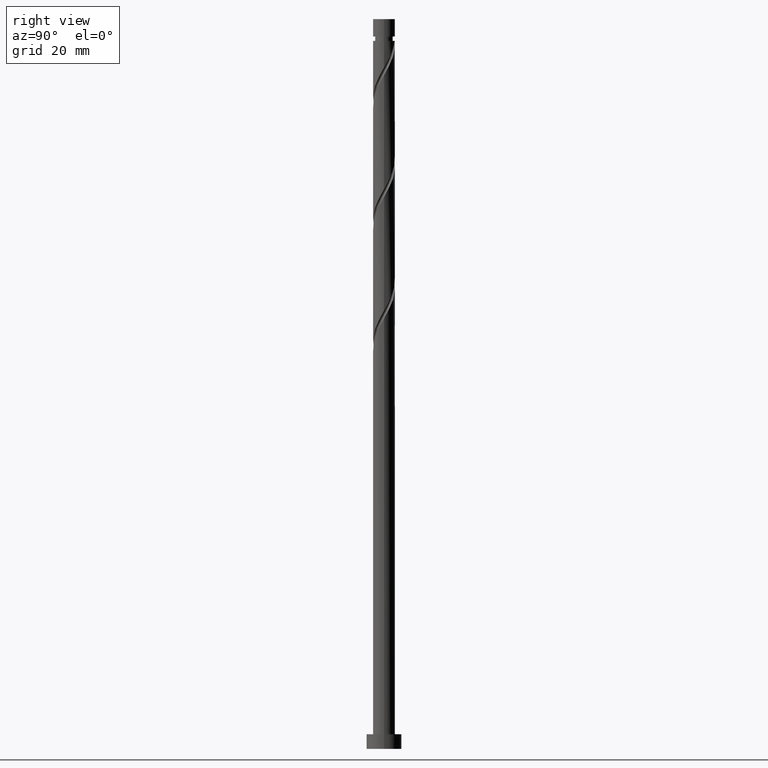
[diagram: clean part render]
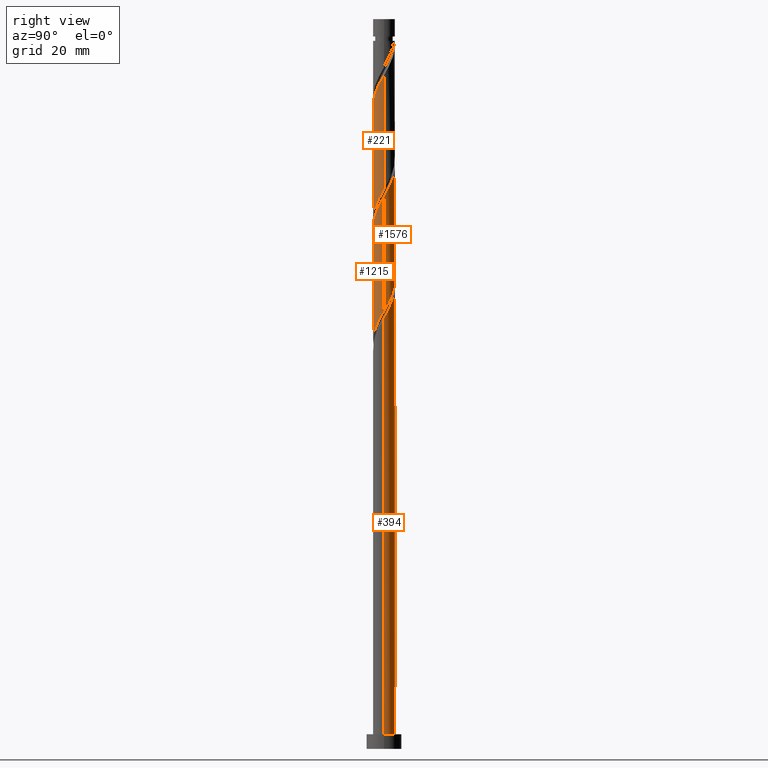
[diagram: same view with one multi-face feature highlighted, each face labeled with its STEP entity id]
A machine part, right view. The highlighted faces form ONE feature: a constant-radius fillet chain: 4 tangent blend faces with common blend radius 3.75 mm. The faces share edges in the B-rep.
Their STEP definitions:
[1] entity #221 (Cylinder):
#14 = ORIENTED_EDGE ( 'NONE', *, *, #55, .F. ) ;
#19 = VERTEX_POINT ( 'NONE', #1005 ) ;
#47 = CARTESIAN_POINT ( 'NONE',  ( 1.192466366171775149, -3.584389989078964778, 222.5072981468107400 ) ) ;
#55 = EDGE_CURVE ( 'NONE', #867, #19, #1653, .T. ) ;
#64 = CARTESIAN_POINT ( 'NONE',  ( 3.627293234367517716, -1.054785011351626611, 228.9175545570671488 ) ) ;
#151 = CARTESIAN_POINT ( 'NONE',  ( 3.750000000000000000, 5.070063162784191100E-15, 191.7839379714205847 ) ) ;
#160 = CARTESIAN_POINT ( 'NONE',  ( -0.3000147894881602939, -3.765610010921039752, 180.8406314801440828 ) ) ;
#181 = CARTESIAN_POINT ( 'NONE',  ( -3.414519813292441253, -1.615822413786172973, 212.8919135314261268 ) ) ;
#191 = CARTESIAN_POINT ( 'NONE',  ( 3.269464109641848193, -1.892202965863933217, 227.3149904545030324 ) ) ;
#217 = CARTESIAN_POINT ( 'NONE',  ( -3.750000000000001332, -0.3047116445139130825, 171.4903053754355255 ) ) ;
#219 = ORIENTED_EDGE ( 'NONE', *, *, #1658, .T. ) ;
#221 = ADVANCED_FACE ( 'NONE', ( #1339 ), #310, .T. ) ;
#274 = CARTESIAN_POINT ( 'NONE',  ( -3.448378672004678513, -1.473493988607774030, 173.6290930186056300 ) ) ;
#287 = EDGE_LOOP ( 'NONE', ( #1458, #14, #219, #1106 ) ) ;
#304 = CARTESIAN_POINT ( 'NONE',  ( 2.928608458829457195, -2.386017628420403991, 187.2508878904004632 ) ) ;
#306 = CARTESIAN_POINT ( 'NONE',  ( -3.701991687481390514, -0.7517214737381887613, 211.2893494288620104 ) ) ;
#310 = CYLINDRICAL_SURFACE ( 'NONE', #381, 3.750000000000000000 ) ;
#314 = CARTESIAN_POINT ( 'NONE',  ( -2.015616132092366453, -3.194858249799103156, 177.6355032750158784 ) ) ;
#328 = CARTESIAN_POINT ( 'NONE',  ( 3.750000000000000000, 5.070063162784191100E-15, 191.7839379714205847 ) ) ;
#350 = VERTEX_POINT ( 'NONE', #649 ) ;
#365 = CARTESIAN_POINT ( 'NONE',  ( -3.750000000000000000, 0.000000000000000000, 250.0000000000000000 ) ) ;
#381 = AXIS2_PLACEMENT_3D ( 'NONE', #1583, #741, #1318 ) ;
#427 = CARTESIAN_POINT ( 'NONE',  ( -2.995544862262065511, -2.255927963871039665, 175.2316571211696896 ) ) ;
#428 = CARTESIAN_POINT ( 'NONE',  ( 1.604041249132071023, -3.389624119439037742, 223.3085801980928125 ) ) ;
#439 = EDGE_CURVE ( 'NONE', #19, #759, #1813, .T. ) ;
#458 = CARTESIAN_POINT ( 'NONE',  ( 3.414519813292434591, -1.615822413786171197, 188.8534519929645228 ) ) ;
#481 = VECTOR ( 'NONE', #524, 1000.000000000000000 ) ;
#493 = CARTESIAN_POINT ( 'NONE',  ( 2.995544862262069064, -2.255927963871046771, 226.5137084032209884 ) ) ;
#524 = DIRECTION ( 'NONE',  ( -0.000000000000000000, -0.000000000000000000, -1.000000000000000000 ) ) ;
#582 = CARTESIAN_POINT ( 'NONE',  ( -0.1549288833814814470, -3.746798238642456536, 220.1034519929646365 ) ) ;
#589 = CARTESIAN_POINT ( 'NONE',  ( -1.878406675807783310, -3.245626035186555569, 216.8983237878364321 ) ) ;
#595 = CARTESIAN_POINT ( 'NONE',  ( 2.272497025797930892, -3.017546171312037728, 185.6483237878363752 ) ) ;
#606 = CARTESIAN_POINT ( 'NONE',  ( -1.192466366171776260, -3.584389989078958560, 179.2380673775799380 ) ) ;
#609 = CARTESIAN_POINT ( 'NONE',  ( -2.600552742313699817, -2.701781899866222858, 215.2957596852723157 ) ) ;
#615 = CARTESIAN_POINT ( 'NONE',  ( -2.368620873487326861, -2.907255605838628298, 176.8342212237338344 ) ) ;
#649 = CARTESIAN_POINT ( 'NONE',  ( -3.749999999999999112, 3.933411834254400835E-15, 170.9506046380872135 ) ) ;
#666 = VECTOR ( 'NONE', #989, 1000.000000000000000 ) ;
#681 = CARTESIAN_POINT ( 'NONE',  ( 3.700805247676857146, -0.6054258986593523684, 229.7188366083492213 ) ) ;
#729 = CARTESIAN_POINT ( 'NONE',  ( -3.171564136060952777, -2.000920021103288704, 213.6931955827082277 ) ) ;
#737 = CARTESIAN_POINT ( 'NONE',  ( -2.928608458829464301, -2.386017628420405767, 214.4944776339901864 ) ) ;
#741 = DIRECTION ( 'NONE',  ( -0.000000000000000000, -0.000000000000000000, -1.000000000000000000 ) ) ;
#753 = CARTESIAN_POINT ( 'NONE',  ( 3.750000000000000888, -0.1491492387628801652, 191.5197670557876108 ) ) ;
#758 = CARTESIAN_POINT ( 'NONE',  ( -2.272497025797937109, -3.017546171312040837, 216.0970417365542744 ) ) ;
#759 = VERTEX_POINT ( 'NONE', #328 ) ;
#855 = CARTESIAN_POINT ( 'NONE',  ( -3.627293234367512831, -1.054785011351622170, 172.8278109673235576 ) ) ;
#867 = VERTEX_POINT ( 'NONE', #1497 ) ;
#871 = CARTESIAN_POINT ( 'NONE',  ( 0.6098725562511163600, -3.727986466363861329, 182.4431955827081993 ) ) ;
#946 = CARTESIAN_POINT ( 'NONE',  ( -3.700805247676850485, -0.6054258986593490377, 172.0265289160414852 ) ) ;
#989 = DIRECTION ( 'NONE',  ( -0.000000000000000000, -0.000000000000000000, -1.000000000000000000 ) ) ;
#1004 = CARTESIAN_POINT ( 'NONE',  ( 3.171564136060946559, -2.000920021103287816, 188.0521699416825072 ) ) ;
#1005 = CARTESIAN_POINT ( 'NONE',  ( 3.750000000000005773, -1.570373545995091893E-15, 230.7947608863034930 ) ) ;
#1010 = CARTESIAN_POINT ( 'NONE',  ( -3.750000000000005329, 1.091783512929921031E-15, 209.9614275529701501 ) ) ;
#1017 = CARTESIAN_POINT ( 'NONE',  ( 1.484316325817624183, -3.473705899061065416, 184.0457596852722304 ) ) ;
#1038 = CARTESIAN_POINT ( 'NONE',  ( -1.604041249132071023, -3.389624119439029748, 178.4367853262979224 ) ) ;
#1041 = CARTESIAN_POINT ( 'NONE',  ( -0.6098725562511208009, -3.727986466363865770, 219.3021699416825641 ) ) ;
#1074 = CARTESIAN_POINT ( 'NONE',  ( -3.749999999999999112, 3.933411834254400835E-15, 170.9506046380872135 ) ) ;
#1106 = ORIENTED_EDGE ( 'NONE', *, *, #1415, .F. ) ;
#1110 = CARTESIAN_POINT ( 'NONE',  ( 3.750000000000005773, -1.570373545995091893E-15, 230.7947608863034930 ) ) ;
#1147 = CARTESIAN_POINT ( 'NONE',  ( 0.7462405778299671111, -3.675000000000006484, 221.7060160955286960 ) ) ;
#1155 = CARTESIAN_POINT ( 'NONE',  ( 2.368620873487329970, -2.907255605838634516, 224.9111443006569573 ) ) ;
#1175 = CARTESIAN_POINT ( 'NONE',  ( -1.484316325817628623, -3.473705899061069413, 217.6996058391184192 ) ) ;
#1181 = CARTESIAN_POINT ( 'NONE',  ( -2.721625614882287270, -2.619652961878153885, 176.0329391724517905 ) ) ;
#1194 = CARTESIAN_POINT ( 'NONE',  ( 3.448378672004683398, -1.473493988607778693, 228.1162725057851048 ) ) ;
#1273 = CARTESIAN_POINT ( 'NONE',  ( 3.750000000000000000, 4.592425496802573972E-16, 250.0000000000000000 ) ) ;
#1288 = CARTESIAN_POINT ( 'NONE',  ( -3.558255750386915661, -1.183771943762180756, 212.0906314801440544 ) ) ;
#1304 = CARTESIAN_POINT ( 'NONE',  ( -0.7462405778299673331, -3.674999999999998490, 180.0393494288619536 ) ) ;
#1307 = CARTESIAN_POINT ( 'NONE',  ( 2.721625614882290378, -2.619652961878159214, 225.7124263519389444 ) ) ;
#1316 = CARTESIAN_POINT ( 'NONE',  ( -3.738154474233792879, -0.2978273438855548183, 210.4880673775800233 ) ) ;
#1318 = DIRECTION ( 'NONE',  ( -1.000000000000000000, 0.000000000000000000, 0.000000000000000000 ) ) ;
#1326 = CARTESIAN_POINT ( 'NONE',  ( 3.738154474233785329, -0.2978273438855582045, 191.2572981468106832 ) ) ;
#1327 = CARTESIAN_POINT ( 'NONE',  ( -1.047094441034374546, -3.600846182712469368, 218.5008878904005485 ) ) ;
#1339 = FACE_OUTER_BOUND ( 'NONE', #287, .T. ) ;
#1415 = EDGE_CURVE ( 'NONE', #759, #350, #1773, .T. ) ;
#1435 = CARTESIAN_POINT ( 'NONE',  ( 1.878406675807777315, -3.245626035186550240, 184.8470417365543312 ) ) ;
#1458 = ORIENTED_EDGE ( 'NONE', *, *, #439, .F. ) ;
#1467 = CARTESIAN_POINT ( 'NONE',  ( -3.750000000000007994, -0.1491492387628717831, 210.2255984686031240 ) ) ;
#1497 = CARTESIAN_POINT ( 'NONE',  ( -3.750000000000005773, 1.091783512929921031E-15, 209.9614275529701501 ) ) ;
#1570 = CARTESIAN_POINT ( 'NONE',  ( -3.269464109641842864, -1.892202965863927444, 174.4303750698877025 ) ) ;
#1572 = CARTESIAN_POINT ( 'NONE',  ( 2.015616132092366897, -3.194858249799108929, 224.1098622493748564 ) ) ;
#1578 = CARTESIAN_POINT ( 'NONE',  ( 3.701991687481383408, -0.7517214737381890943, 190.4560160955286960 ) ) ;
#1583 = CARTESIAN_POINT ( 'NONE',  ( 0.000000000000000000, 0.000000000000000000, 250.0000000000000000 ) ) ;
#1586 = CARTESIAN_POINT ( 'NONE',  ( 1.047094441034371437, -3.600846182712463150, 183.2444776339901864 ) ) ;
#1597 = CARTESIAN_POINT ( 'NONE',  ( 0.1549288833814780886, -3.746798238642448986, 181.6419135314261268 ) ) ;
#1609 = CARTESIAN_POINT ( 'NONE',  ( 0.3000147894881577404, -3.765610010921045969, 220.9047340442467089 ) ) ;
#1646 = CARTESIAN_POINT ( 'NONE',  ( 3.750000000000005773, -0.3047116445139201324, 230.2550601489551241 ) ) ;
#1653 =( BOUNDED_CURVE ( )  B_SPLINE_CURVE ( 2, ( #1010, #1467, #1316, #306, #1288, #181, #729, #737, #609, #758, #589, #1175, #1327, #1041, #582, #1609, #1147, #47, #428, #1572, #1155, #1307, #493, #191, #1194, #64, #681, #1646, #1110 ),
 .UNSPECIFIED., .F., .T. ) 
 B_SPLINE_CURVE_WITH_KNOTS ( ( 3, 2, 2, 2, 2, 2, 2, 2, 2, 2, 2, 2, 2, 2, 3 ),
 ( 0.5545271625973831053, 0.5576923076923077094, 0.5673076923076922906, 0.5769230769230768718, 0.5865384615384615641, 0.5961538461538461453, 0.6057692307692308376, 0.6153846153846154188, 0.6250000000000000000, 0.6346153846153845812, 0.6442307692307691624, 0.6538461538461538547, 0.6634615384615384359, 0.6730769230769231282, 0.6795271625973833274 ),
 .UNSPECIFIED. ) 
 CURVE ( )  GEOMETRIC_REPRESENTATION_ITEM ( )  RATIONAL_B_SPLINE_CURVE ( ( 0.9061636035682886225, 0.9069090390690772718, 0.9090909090909340406, 0.9024626128164374705, 0.9090909090909340406, 0.9024626128164374705, 0.9090909090909340406, 0.9024626128164374705, 0.9090909090909340406, 0.9024626128164374705, 0.9090909090909340406, 0.9024626128164374705, 0.9090909090909340406, 0.9024626128164374705, 0.9090909090909340406, 0.9024626128164374705, 0.9090909090909340406, 0.9024626128164374705, 0.9090909090909340406, 0.9024626128164374705, 0.9090909090909340406, 0.9024626128164374705, 0.9090909090909340406, 0.9024626128164374705, 0.9090909090909340406, 0.9024626128164374705, 0.9090909090909340406, 0.9046444828382940173, 0.9061636035682887336 ) ) 
 REPRESENTATION_ITEM ( '' )  );
#1658 = EDGE_CURVE ( 'NONE', #867, #350, #1678, .T. ) ;
#1678 = LINE ( 'NONE', #365, #481 ) ;
#1726 = CARTESIAN_POINT ( 'NONE',  ( 2.600552742313694488, -2.701781899866218861, 186.4496058391184192 ) ) ;
#1742 = CARTESIAN_POINT ( 'NONE',  ( 3.558255750386909000, -1.183771943762181866, 189.6547340442466236 ) ) ;
#1773 =( BOUNDED_CURVE ( )  B_SPLINE_CURVE ( 2, ( #151, #753, #1326, #1578, #1742, #458, #1004, #304, #1726, #595, #1435, #1017, #1586, #871, #1597, #160, #1304, #606, #1038, #314, #615, #1181, #427, #1570, #274, #855, #946, #217, #1074 ),
 .UNSPECIFIED., .F., .T. ) 
 B_SPLINE_CURVE_WITH_KNOTS ( ( 3, 2, 2, 2, 2, 2, 2, 2, 2, 2, 2, 2, 2, 2, 3 ),
 ( 0.5545271625973832164, 0.5576923076923077094, 0.5673076923076922906, 0.5769230769230768718, 0.5865384615384615641, 0.5961538461538461453, 0.6057692307692307265, 0.6153846153846154188, 0.6250000000000000000, 0.6346153846153845812, 0.6442307692307692735, 0.6538461538461538547, 0.6634615384615384359, 0.6730769230769231282, 0.6795271625973834384 ),
 .UNSPECIFIED. ) 
 CURVE ( )  GEOMETRIC_REPRESENTATION_ITEM ( )  RATIONAL_B_SPLINE_CURVE ( ( 0.9061636035682824053, 0.9069090390690710546, 0.9090909090909277124, 0.9024626128164311423, 0.9090909090909277124, 0.9024626128164311423, 0.9090909090909277124, 0.9024626128164311423, 0.9090909090909277124, 0.9024626128164311423, 0.9090909090909277124, 0.9024626128164311423, 0.9090909090909277124, 0.9024626128164311423, 0.9090909090909277124, 0.9024626128164311423, 0.9090909090909277124, 0.9024626128164311423, 0.9090909090909277124, 0.9024626128164311423, 0.9090909090909277124, 0.9024626128164311423, 0.9090909090909277124, 0.9024626128164311423, 0.9090909090909277124, 0.9024626128164311423, 0.9090909090909277124, 0.9046444828382876890, 0.9061636035682825163 ) ) 
 REPRESENTATION_ITEM ( '' )  );
#1813 = LINE ( 'NONE', #1273, #666 ) ;
[2] entity #1576 (Cylinder):
#20 = CARTESIAN_POINT ( 'NONE',  ( -1.047094441034371659, 3.600846182712463150, 162.4111443006569004 ) ) ;
#30 = CARTESIAN_POINT ( 'NONE',  ( 2.272497025797937997, 3.017546171312039061, 195.2637084032209884 ) ) ;
#38 = CARTESIAN_POINT ( 'NONE',  ( -2.600552742313694488, 2.701781899866218861, 165.6162725057850480 ) ) ;
#40 = VERTEX_POINT ( 'NONE', #317 ) ;
#49 = CARTESIAN_POINT ( 'NONE',  ( 1.878406675807783754, 3.245626035186555125, 196.0649904545030324 ) ) ;
#128 = DIRECTION ( 'NONE',  ( -0.000000000000000000, -0.000000000000000000, -1.000000000000000000 ) ) ;
#157 = CARTESIAN_POINT ( 'NONE',  ( 3.738154474233792879, 0.2978273438855535415, 189.6547340442466805 ) ) ;
#159 = FACE_OUTER_BOUND ( 'NONE', #1795, .T. ) ;
#164 = CARTESIAN_POINT ( 'NONE',  ( 2.721625614882288602, 2.619652961878153885, 155.1996058391184476 ) ) ;
#166 = EDGE_CURVE ( 'NONE', #1728, #867, #370, .T. ) ;
#173 = CARTESIAN_POINT ( 'NONE',  ( -2.272497025797931780, 3.017546171312037284, 164.8149904545030893 ) ) ;
#182 = CARTESIAN_POINT ( 'NONE',  ( 3.750000000000000000, 5.070063162784191100E-15, 150.1172713047538991 ) ) ;
#235 = LINE ( 'NONE', #1837, #752 ) ;
#285 = CARTESIAN_POINT ( 'NONE',  ( 3.700805247676850485, 0.6054258986593495928, 151.1931955827081708 ) ) ;
#298 = CARTESIAN_POINT ( 'NONE',  ( 0.3000147894881596278, 3.765610010921039752, 160.0072981468107685 ) ) ;
#307 = CARTESIAN_POINT ( 'NONE',  ( 3.448378672004678513, 1.473493988607773808, 152.7957596852722304 ) ) ;
#317 = CARTESIAN_POINT ( 'NONE',  ( 3.750000000000000000, 5.070063162784191100E-15, 150.1172713047538991 ) ) ;
#318 = CARTESIAN_POINT ( 'NONE',  ( -0.1549288833814793653, 3.746798238642448986, 160.8085801980928125 ) ) ;
#331 = CARTESIAN_POINT ( 'NONE',  ( 1.047094441034376544, 3.600846182712468480, 197.6675545570671204 ) ) ;
#350 = VERTEX_POINT ( 'NONE', #649 ) ;
#359 = ORIENTED_EDGE ( 'NONE', *, *, #166, .F. ) ;
#365 = CARTESIAN_POINT ( 'NONE',  ( -3.750000000000000000, 0.000000000000000000, 250.0000000000000000 ) ) ;
#370 =( BOUNDED_CURVE ( )  B_SPLINE_CURVE ( 2, ( #1312, #474, #157, #1738, #1330, #593, #888, #1178, #733, #30, #49, #1621, #331, #1449, #620, #601, #1759, #1603, #1301, #1158, #1167, #910, #747, #1013, #1185, #900, #629, #1749, #1729 ),
 .UNSPECIFIED., .F., .T. ) 
 B_SPLINE_CURVE_WITH_KNOTS ( ( 3, 2, 2, 2, 2, 2, 2, 2, 2, 2, 2, 2, 2, 2, 3 ),
 ( 0.4295271625973832164, 0.4326923076923077094, 0.4423076923076922906, 0.4519230769230768718, 0.4615384615384615641, 0.4711538461538461453, 0.4807692307692307265, 0.4903846153846154188, 0.5000000000000000000, 0.5096153846153845812, 0.5192307692307691624, 0.5288461538461538547, 0.5384615384615384359, 0.5480769230769231282, 0.5545271625973831053 ),
 .UNSPECIFIED. ) 
 CURVE ( )  GEOMETRIC_REPRESENTATION_ITEM ( )  RATIONAL_B_SPLINE_CURVE ( ( 0.9061636035682887336, 0.9069090390690773829, 0.9090909090909340406, 0.9024626128164374705, 0.9090909090909340406, 0.9024626128164374705, 0.9090909090909340406, 0.9024626128164374705, 0.9090909090909340406, 0.9024626128164374705, 0.9090909090909340406, 0.9024626128164374705, 0.9090909090909340406, 0.9024626128164374705, 0.9090909090909340406, 0.9024626128164374705, 0.9090909090909340406, 0.9024626128164374705, 0.9090909090909340406, 0.9024626128164374705, 0.9090909090909340406, 0.9024626128164374705, 0.9090909090909340406, 0.9024626128164374705, 0.9090909090909340406, 0.9024626128164374705, 0.9090909090909340406, 0.9046444828382941283, 0.9061636035682886225 ) ) 
 REPRESENTATION_ITEM ( '' )  );
#409 =( BOUNDED_CURVE ( )  B_SPLINE_CURVE ( 2, ( #1610, #1438, #1746, #1011, #463, #897, #1020, #1735, #38, #173, #1308, #610, #20, #1600, #318, #298, #1447, #590, #874, #730, #1156, #164, #583, #444, #307, #1456, #285, #1588, #182 ),
 .UNSPECIFIED., .F., .T. ) 
 B_SPLINE_CURVE_WITH_KNOTS ( ( 3, 2, 2, 2, 2, 2, 2, 2, 2, 2, 2, 2, 2, 2, 3 ),
 ( 0.6795271625973834384, 0.6826923076923077094, 0.6923076923076922906, 0.7019230769230768718, 0.7115384615384615641, 0.7211538461538461453, 0.7307692307692307265, 0.7403846153846154188, 0.7500000000000000000, 0.7596153846153845812, 0.7692307692307692735, 0.7788461538461538547, 0.7884615384615384359, 0.7980769230769231282, 0.8045271625973833274 ),
 .UNSPECIFIED. ) 
 CURVE ( )  GEOMETRIC_REPRESENTATION_ITEM ( )  RATIONAL_B_SPLINE_CURVE ( ( 0.9061636035682825163, 0.9069090390690712766, 0.9090909090909277124, 0.9024626128164311423, 0.9090909090909277124, 0.9024626128164311423, 0.9090909090909277124, 0.9024626128164311423, 0.9090909090909277124, 0.9024626128164311423, 0.9090909090909277124, 0.9024626128164311423, 0.9090909090909277124, 0.9024626128164311423, 0.9090909090909277124, 0.9024626128164311423, 0.9090909090909277124, 0.9024626128164311423, 0.9090909090909277124, 0.9024626128164311423, 0.9090909090909277124, 0.9024626128164311423, 0.9090909090909277124, 0.9024626128164311423, 0.9090909090909277124, 0.9024626128164311423, 0.9090909090909277124, 0.9046444828382878001, 0.9061636035682825163 ) ) 
 REPRESENTATION_ITEM ( '' )  );
#444 = CARTESIAN_POINT ( 'NONE',  ( 3.269464109641844196, 1.892202965863925668, 153.5970417365543028 ) ) ;
#463 = CARTESIAN_POINT ( 'NONE',  ( -3.558255750386909000, 1.183771943762180312, 168.8214007109133092 ) ) ;
#474 = CARTESIAN_POINT ( 'NONE',  ( 3.750000000000006217, 0.1491492387628762240, 189.3922651352697812 ) ) ;
#481 = VECTOR ( 'NONE', #524, 1000.000000000000000 ) ;
#524 = DIRECTION ( 'NONE',  ( -0.000000000000000000, -0.000000000000000000, -1.000000000000000000 ) ) ;
#583 = CARTESIAN_POINT ( 'NONE',  ( 2.995544862262065511, 2.255927963871039221, 154.3983237878364037 ) ) ;
#590 = CARTESIAN_POINT ( 'NONE',  ( 1.192466366171776482, 3.584389989078958560, 158.4047340442466520 ) ) ;
#593 = CARTESIAN_POINT ( 'NONE',  ( 3.414519813292441697, 1.615822413786171863, 192.0585801980928409 ) ) ;
#601 = CARTESIAN_POINT ( 'NONE',  ( -0.3000147894881572963, 3.765610010921045969, 200.0714007109133092 ) ) ;
#610 = CARTESIAN_POINT ( 'NONE',  ( -1.484316325817624849, 3.473705899061064972, 163.2124263519389444 ) ) ;
#620 = CARTESIAN_POINT ( 'NONE',  ( 0.1549288833814836119, 3.746798238642456536, 199.2701186596312652 ) ) ;
#629 = CARTESIAN_POINT ( 'NONE',  ( -3.700805247676857146, 0.6054258986593520353, 208.8855032750159353 ) ) ;
#649 = CARTESIAN_POINT ( 'NONE',  ( -3.749999999999999112, 3.933411834254400835E-15, 170.9506046380872135 ) ) ;
#718 = EDGE_CURVE ( 'NONE', #350, #40, #409, .T. ) ;
#730 = CARTESIAN_POINT ( 'NONE',  ( 2.015616132092366897, 3.194858249799102268, 156.8021699416825356 ) ) ;
#733 = CARTESIAN_POINT ( 'NONE',  ( 2.600552742313700705, 2.701781899866222858, 194.4624263519389444 ) ) ;
#747 = CARTESIAN_POINT ( 'NONE',  ( -2.995544862262069064, 2.255927963871046327, 205.6803750698876740 ) ) ;
#752 = VECTOR ( 'NONE', #1252, 1000.000000000000000 ) ;
#808 = ORIENTED_EDGE ( 'NONE', *, *, #1109, .T. ) ;
#867 = VERTEX_POINT ( 'NONE', #1497 ) ;
#874 = CARTESIAN_POINT ( 'NONE',  ( 1.604041249132072799, 3.389624119439029304, 157.6034519929645796 ) ) ;
#888 = CARTESIAN_POINT ( 'NONE',  ( 3.171564136060952777, 2.000920021103289148, 192.8598622493748849 ) ) ;
#897 = CARTESIAN_POINT ( 'NONE',  ( -3.414519813292434591, 1.615822413786171419, 168.0201186596312368 ) ) ;
#900 = CARTESIAN_POINT ( 'NONE',  ( -3.627293234367518604, 1.054785011351624613, 208.0842212237338629 ) ) ;
#910 = CARTESIAN_POINT ( 'NONE',  ( -2.721625614882290822, 2.619652961878159214, 204.8790930186056300 ) ) ;
#1011 = CARTESIAN_POINT ( 'NONE',  ( -3.701991687481383408, 0.7517214737381887613, 169.6226827621953248 ) ) ;
#1013 = CARTESIAN_POINT ( 'NONE',  ( -3.269464109641848637, 1.892202965863931885, 206.4816571211697749 ) ) ;
#1020 = CARTESIAN_POINT ( 'NONE',  ( -3.171564136060946559, 2.000920021103287372, 167.2188366083491644 ) ) ;
#1023 = AXIS2_PLACEMENT_3D ( 'NONE', #1596, #128, #1270 ) ;
#1027 = CYLINDRICAL_SURFACE ( 'NONE', #1023, 3.750000000000000000 ) ;
#1050 = CARTESIAN_POINT ( 'NONE',  ( 3.750000000000006217, 1.929316070793970632E-15, 189.1280942196368073 ) ) ;
#1109 = EDGE_CURVE ( 'NONE', #1728, #40, #235, .T. ) ;
#1156 = CARTESIAN_POINT ( 'NONE',  ( 2.368620873487329082, 2.907255605838626966, 156.0008878904004916 ) ) ;
#1158 = CARTESIAN_POINT ( 'NONE',  ( -2.015616132092367785, 3.194858249799108485, 203.2765289160415136 ) ) ;
#1167 = CARTESIAN_POINT ( 'NONE',  ( -2.368620873487330414, 2.907255605838634516, 204.0778109673235861 ) ) ;
#1178 = CARTESIAN_POINT ( 'NONE',  ( 2.928608458829464745, 2.386017628420404435, 193.6611443006569289 ) ) ;
#1185 = CARTESIAN_POINT ( 'NONE',  ( -3.448378672004683398, 1.473493988607778693, 207.2829391724517052 ) ) ;
#1252 = DIRECTION ( 'NONE',  ( -0.000000000000000000, -0.000000000000000000, -1.000000000000000000 ) ) ;
#1270 = DIRECTION ( 'NONE',  ( -1.000000000000000000, 0.000000000000000000, 0.000000000000000000 ) ) ;
#1300 = ORIENTED_EDGE ( 'NONE', *, *, #718, .F. ) ;
#1301 = CARTESIAN_POINT ( 'NONE',  ( -1.604041249132071911, 3.389624119439037297, 202.4752468647594696 ) ) ;
#1308 = CARTESIAN_POINT ( 'NONE',  ( -1.878406675807777981, 3.245626035186549796, 164.0137084032209316 ) ) ;
#1312 = CARTESIAN_POINT ( 'NONE',  ( 3.750000000000006217, 1.929316070793970632E-15, 189.1280942196368073 ) ) ;
#1330 = CARTESIAN_POINT ( 'NONE',  ( 3.558255750386916549, 1.183771943762178536, 191.2572981468107400 ) ) ;
#1358 = ORIENTED_EDGE ( 'NONE', *, *, #1658, .F. ) ;
#1438 = CARTESIAN_POINT ( 'NONE',  ( -3.749999999999999112, 0.1491492387628887972, 170.6864337224542965 ) ) ;
#1447 = CARTESIAN_POINT ( 'NONE',  ( 0.7462405778299676662, 3.674999999999998490, 159.2060160955287245 ) ) ;
#1449 = CARTESIAN_POINT ( 'NONE',  ( 0.6098725562511212450, 3.727986466363866658, 198.4688366083491928 ) ) ;
#1456 = CARTESIAN_POINT ( 'NONE',  ( 3.627293234367513719, 1.054785011351620172, 151.9944776339901864 ) ) ;
#1497 = CARTESIAN_POINT ( 'NONE',  ( -3.750000000000005773, 1.091783512929921031E-15, 209.9614275529701501 ) ) ;
#1576 = ADVANCED_FACE ( 'NONE', ( #159 ), #1027, .T. ) ;
#1588 = CARTESIAN_POINT ( 'NONE',  ( 3.750000000000000000, 0.3047116445139174679, 150.6569720421022680 ) ) ;
#1596 = CARTESIAN_POINT ( 'NONE',  ( 0.000000000000000000, 0.000000000000000000, 250.0000000000000000 ) ) ;
#1600 = CARTESIAN_POINT ( 'NONE',  ( -0.6098725562511179143, 3.727986466363861329, 161.6098622493748280 ) ) ;
#1603 = CARTESIAN_POINT ( 'NONE',  ( -1.192466366171775816, 3.584389989078964778, 201.6739648134773972 ) ) ;
#1610 = CARTESIAN_POINT ( 'NONE',  ( -3.749999999999999112, 3.933411834254400835E-15, 170.9506046380872135 ) ) ;
#1621 = CARTESIAN_POINT ( 'NONE',  ( 1.484316325817629068, 3.473705899061069413, 196.8662725057850764 ) ) ;
#1658 = EDGE_CURVE ( 'NONE', #867, #350, #1678, .T. ) ;
#1678 = LINE ( 'NONE', #365, #481 ) ;
#1728 = VERTEX_POINT ( 'NONE', #1050 ) ;
#1729 = CARTESIAN_POINT ( 'NONE',  ( -3.750000000000005329, 1.091783512929921031E-15, 209.9614275529701501 ) ) ;
#1735 = CARTESIAN_POINT ( 'NONE',  ( -2.928608458829458971, 2.386017628420402215, 166.4175545570671488 ) ) ;
#1738 = CARTESIAN_POINT ( 'NONE',  ( 3.701991687481390514, 0.7517214737381885392, 190.4560160955287245 ) ) ;
#1746 = CARTESIAN_POINT ( 'NONE',  ( -3.738154474233785329, 0.2978273438855562616, 170.4239648134774541 ) ) ;
#1749 = CARTESIAN_POINT ( 'NONE',  ( -3.750000000000004885, 0.3047116445139306240, 209.4217268156218665 ) ) ;
#1759 = CARTESIAN_POINT ( 'NONE',  ( -0.7462405778299668890, 3.675000000000006484, 200.8726827621953532 ) ) ;
#1795 = EDGE_LOOP ( 'NONE', ( #359, #808, #1300, #1358 ) ) ;
#1837 = CARTESIAN_POINT ( 'NONE',  ( 3.750000000000000000, 4.592425496802573972E-16, 250.0000000000000000 ) ) ;
[3] entity #1215 (Cylinder):
#2 = FACE_OUTER_BOUND ( 'NONE', #485, .T. ) ;
#40 = VERTEX_POINT ( 'NONE', #317 ) ;
#78 = CARTESIAN_POINT ( 'NONE',  ( -1.484316325817628623, -3.473705899061069413, 176.0329391724517620 ) ) ;
#107 = CARTESIAN_POINT ( 'NONE',  ( -0.6098725562511208009, -3.727986466363865770, 177.6355032750159353 ) ) ;
#117 = CARTESIAN_POINT ( 'NONE',  ( 2.600552742313694488, -2.701781899866218861, 144.7829391724517905 ) ) ;
#145 = CARTESIAN_POINT ( 'NONE',  ( -3.750000000000000000, 0.000000000000000000, 250.0000000000000000 ) ) ;
#204 = CARTESIAN_POINT ( 'NONE',  ( 2.368620873487329970, -2.907255605838634516, 183.2444776339902432 ) ) ;
#211 = CARTESIAN_POINT ( 'NONE',  ( 3.750000000000006217, 1.929316070793970632E-15, 189.1280942196368073 ) ) ;
#235 = LINE ( 'NONE', #1837, #752 ) ;
#249 = CARTESIAN_POINT ( 'NONE',  ( -1.604041249132071023, -3.389624119439029748, 136.7701186596312368 ) ) ;
#255 = CARTESIAN_POINT ( 'NONE',  ( -2.995544862262065511, -2.255927963871039665, 133.5649904545030040 ) ) ;
#276 = CARTESIAN_POINT ( 'NONE',  ( 1.047094441034371437, -3.600846182712463150, 141.5778109673235576 ) ) ;
#284 = ORIENTED_EDGE ( 'NONE', *, *, #585, .F. ) ;
#317 = CARTESIAN_POINT ( 'NONE',  ( 3.750000000000000000, 5.070063162784191100E-15, 150.1172713047538991 ) ) ;
#341 = CARTESIAN_POINT ( 'NONE',  ( -3.558255750386915661, -1.183771943762180756, 170.4239648134773972 ) ) ;
#384 = EDGE_CURVE ( 'NONE', #592, #1728, #757, .T. ) ;
#400 = CARTESIAN_POINT ( 'NONE',  ( 1.878406675807777315, -3.245626035186550240, 143.1803750698876740 ) ) ;
#406 = CYLINDRICAL_SURFACE ( 'NONE', #1439, 3.750000000000000000 ) ;
#410 = CARTESIAN_POINT ( 'NONE',  ( -3.700805247676850485, -0.6054258986593490377, 130.3598622493748564 ) ) ;
#429 = CARTESIAN_POINT ( 'NONE',  ( 0.1549288833814780886, -3.746798238642448986, 139.9752468647594128 ) ) ;
#485 = EDGE_LOOP ( 'NONE', ( #1431, #1012, #1089, #284 ) ) ;
#486 = CARTESIAN_POINT ( 'NONE',  ( -1.878406675807783310, -3.245626035186555569, 175.2316571211697465 ) ) ;
#496 = CARTESIAN_POINT ( 'NONE',  ( 1.192466366171775149, -3.584389989078964778, 180.8406314801440544 ) ) ;
#508 = CARTESIAN_POINT ( 'NONE',  ( 3.700805247676857146, -0.6054258986593523684, 188.0521699416825356 ) ) ;
#547 = CARTESIAN_POINT ( 'NONE',  ( -2.015616132092366453, -3.194858249799103156, 135.9688366083491644 ) ) ;
#575 = CARTESIAN_POINT ( 'NONE',  ( 3.749999999999999112, -0.1491492387628853833, 149.8531003891208684 ) ) ;
#585 = EDGE_CURVE ( 'NONE', #40, #887, #1305, .T. ) ;
#592 = VERTEX_POINT ( 'NONE', #1404 ) ;
#669 = CARTESIAN_POINT ( 'NONE',  ( -2.928608458829464301, -2.386017628420405767, 172.8278109673235576 ) ) ;
#706 = CARTESIAN_POINT ( 'NONE',  ( 2.928608458829457195, -2.386017628420403991, 145.5842212237338060 ) ) ;
#719 = DIRECTION ( 'NONE',  ( -0.000000000000000000, -0.000000000000000000, -1.000000000000000000 ) ) ;
#752 = VECTOR ( 'NONE', #1252, 1000.000000000000000 ) ;
#757 =( BOUNDED_CURVE ( )  B_SPLINE_CURVE ( 2, ( #932, #1490, #1380, #818, #341, #798, #943, #669, #1649, #962, #486, #78, #953, #107, #1520, #1668, #1389, #496, #1196, #1632, #204, #1787, #779, #1204, #1778, #1070, #508, #1640, #211 ),
 .UNSPECIFIED., .F., .T. ) 
 B_SPLINE_CURVE_WITH_KNOTS ( ( 3, 2, 2, 2, 2, 2, 2, 2, 2, 2, 2, 2, 2, 2, 3 ),
 ( 0.3045271625973832719, 0.3076923076923077094, 0.3173076923076922906, 0.3269230769230768718, 0.3365384615384615641, 0.3461538461538461453, 0.3557692307692307265, 0.3653846153846154188, 0.3750000000000000000, 0.3846153846153845812, 0.3942307692307692735, 0.4038461538461538547, 0.4134615384615384359, 0.4230769230769231282, 0.4295271625973832164 ),
 .UNSPECIFIED. ) 
 CURVE ( )  GEOMETRIC_REPRESENTATION_ITEM ( )  RATIONAL_B_SPLINE_CURVE ( ( 0.9061636035682887336, 0.9069090390690774939, 0.9090909090909340406, 0.9024626128164374705, 0.9090909090909340406, 0.9024626128164374705, 0.9090909090909340406, 0.9024626128164374705, 0.9090909090909340406, 0.9024626128164374705, 0.9090909090909340406, 0.9024626128164374705, 0.9090909090909340406, 0.9024626128164374705, 0.9090909090909340406, 0.9024626128164374705, 0.9090909090909340406, 0.9024626128164374705, 0.9090909090909340406, 0.9024626128164374705, 0.9090909090909340406, 0.9024626128164374705, 0.9090909090909340406, 0.9024626128164374705, 0.9090909090909340406, 0.9024626128164374705, 0.9090909090909340406, 0.9046444828382940173, 0.9061636035682887336 ) ) 
 REPRESENTATION_ITEM ( '' )  );
#764 = CARTESIAN_POINT ( 'NONE',  ( -3.750000000000000000, 1.438761286902180122E-14, 129.2839379714205563 ) ) ;
#775 = EDGE_CURVE ( 'NONE', #592, #887, #908, .T. ) ;
#779 = CARTESIAN_POINT ( 'NONE',  ( 2.995544862262069064, -2.255927963871046771, 184.8470417365543597 ) ) ;
#798 = CARTESIAN_POINT ( 'NONE',  ( -3.414519813292441253, -1.615822413786172973, 171.2252468647594412 ) ) ;
#816 = DIRECTION ( 'NONE',  ( -1.000000000000000000, 0.000000000000000000, 0.000000000000000000 ) ) ;
#818 = CARTESIAN_POINT ( 'NONE',  ( -3.701991687481390514, -0.7517214737381887613, 169.6226827621953532 ) ) ;
#825 = DIRECTION ( 'NONE',  ( -0.000000000000000000, -0.000000000000000000, -1.000000000000000000 ) ) ;
#834 = CARTESIAN_POINT ( 'NONE',  ( -3.750000000000000000, 1.438761286902180122E-14, 129.2839379714205563 ) ) ;
#849 = CARTESIAN_POINT ( 'NONE',  ( -3.750000000000001332, -0.3047116445139130825, 129.8236387087688684 ) ) ;
#857 = CARTESIAN_POINT ( 'NONE',  ( -1.192466366171776260, -3.584389989078958560, 137.5714007109133092 ) ) ;
#887 = VERTEX_POINT ( 'NONE', #764 ) ;
#908 = LINE ( 'NONE', #145, #1827 ) ;
#932 = CARTESIAN_POINT ( 'NONE',  ( -3.750000000000006661, 8.076206807974760674E-15, 168.2947608863034930 ) ) ;
#943 = CARTESIAN_POINT ( 'NONE',  ( -3.171564136060952777, -2.000920021103288704, 172.0265289160415421 ) ) ;
#953 = CARTESIAN_POINT ( 'NONE',  ( -1.047094441034374546, -3.600846182712469368, 176.8342212237338060 ) ) ;
#962 = CARTESIAN_POINT ( 'NONE',  ( -2.272497025797937109, -3.017546171312040837, 174.4303750698877025 ) ) ;
#972 = CARTESIAN_POINT ( 'NONE',  ( -0.7462405778299673331, -3.674999999999998490, 138.3726827621953817 ) ) ;
#981 = CARTESIAN_POINT ( 'NONE',  ( -3.627293234367512831, -1.054785011351622170, 131.1611443006569004 ) ) ;
#1006 = CARTESIAN_POINT ( 'NONE',  ( 1.484316325817624183, -3.473705899061065416, 142.3790930186056016 ) ) ;
#1012 = ORIENTED_EDGE ( 'NONE', *, *, #384, .F. ) ;
#1050 = CARTESIAN_POINT ( 'NONE',  ( 3.750000000000006217, 1.929316070793970632E-15, 189.1280942196368073 ) ) ;
#1070 = CARTESIAN_POINT ( 'NONE',  ( 3.627293234367517716, -1.054785011351626611, 187.2508878904004348 ) ) ;
#1089 = ORIENTED_EDGE ( 'NONE', *, *, #775, .T. ) ;
#1107 = CARTESIAN_POINT ( 'NONE',  ( 3.750000000000000000, 5.070063162784191100E-15, 150.1172713047538991 ) ) ;
#1109 = EDGE_CURVE ( 'NONE', #1728, #40, #235, .T. ) ;
#1115 = CARTESIAN_POINT ( 'NONE',  ( -3.269464109641842864, -1.892202965863927444, 132.7637084032209884 ) ) ;
#1135 = CARTESIAN_POINT ( 'NONE',  ( 3.414519813292434591, -1.615822413786171197, 147.1867853262978940 ) ) ;
#1139 = CARTESIAN_POINT ( 'NONE',  ( 0.000000000000000000, 0.000000000000000000, 250.0000000000000000 ) ) ;
#1196 = CARTESIAN_POINT ( 'NONE',  ( 1.604041249132071023, -3.389624119439037742, 181.6419135314261553 ) ) ;
#1204 = CARTESIAN_POINT ( 'NONE',  ( 3.269464109641848193, -1.892202965863933217, 185.6483237878363752 ) ) ;
#1215 = ADVANCED_FACE ( 'NONE', ( #2 ), #406, .T. ) ;
#1245 = CARTESIAN_POINT ( 'NONE',  ( 3.701991687481383408, -0.7517214737381890943, 148.7893494288619820 ) ) ;
#1252 = DIRECTION ( 'NONE',  ( -0.000000000000000000, -0.000000000000000000, -1.000000000000000000 ) ) ;
#1280 = CARTESIAN_POINT ( 'NONE',  ( 3.558255750386909000, -1.183771943762181866, 147.9880673775799664 ) ) ;
#1305 =( BOUNDED_CURVE ( )  B_SPLINE_CURVE ( 2, ( #1107, #575, #1412, #1245, #1280, #1135, #1430, #706, #117, #1709, #400, #1006, #276, #1821, #429, #1701, #972, #857, #249, #547, #1562, #1420, #255, #1115, #1683, #981, #410, #849, #834 ),
 .UNSPECIFIED., .F., .T. ) 
 B_SPLINE_CURVE_WITH_KNOTS ( ( 3, 2, 2, 2, 2, 2, 2, 2, 2, 2, 2, 2, 2, 2, 3 ),
 ( 0.8045271625973833274, 0.8076923076923077094, 0.8173076923076922906, 0.8269230769230768718, 0.8365384615384615641, 0.8461538461538461453, 0.8557692307692307265, 0.8653846153846154188, 0.8750000000000000000, 0.8846153846153845812, 0.8942307692307692735, 0.9038461538461538547, 0.9134615384615384359, 0.9230769230769231282, 0.9295271625973834384 ),
 .UNSPECIFIED. ) 
 CURVE ( )  GEOMETRIC_REPRESENTATION_ITEM ( )  RATIONAL_B_SPLINE_CURVE ( ( 0.9061636035682825163, 0.9069090390690711656, 0.9090909090909277124, 0.9024626128164311423, 0.9090909090909277124, 0.9024626128164311423, 0.9090909090909277124, 0.9024626128164311423, 0.9090909090909277124, 0.9024626128164311423, 0.9090909090909277124, 0.9024626128164311423, 0.9090909090909277124, 0.9024626128164311423, 0.9090909090909277124, 0.9024626128164311423, 0.9090909090909277124, 0.9024626128164311423, 0.9090909090909277124, 0.9024626128164311423, 0.9090909090909277124, 0.9024626128164311423, 0.9090909090909277124, 0.9024626128164311423, 0.9090909090909277124, 0.9024626128164311423, 0.9090909090909277124, 0.9046444828382876890, 0.9061636035682825163 ) ) 
 REPRESENTATION_ITEM ( '' )  );
#1380 = CARTESIAN_POINT ( 'NONE',  ( -3.738154474233792879, -0.2978273438855548183, 168.8214007109133377 ) ) ;
#1389 = CARTESIAN_POINT ( 'NONE',  ( 0.7462405778299671111, -3.675000000000006484, 180.0393494288620388 ) ) ;
#1404 = CARTESIAN_POINT ( 'NONE',  ( -3.750000000000006661, 8.076206807974760674E-15, 168.2947608863034930 ) ) ;
#1412 = CARTESIAN_POINT ( 'NONE',  ( 3.738154474233785329, -0.2978273438855582045, 149.5906314801440544 ) ) ;
#1420 = CARTESIAN_POINT ( 'NONE',  ( -2.721625614882287270, -2.619652961878153885, 134.3662725057850764 ) ) ;
#1430 = CARTESIAN_POINT ( 'NONE',  ( 3.171564136060946559, -2.000920021103287816, 146.3855032750159069 ) ) ;
#1431 = ORIENTED_EDGE ( 'NONE', *, *, #1109, .F. ) ;
#1439 = AXIS2_PLACEMENT_3D ( 'NONE', #1139, #825, #816 ) ;
#1490 = CARTESIAN_POINT ( 'NONE',  ( -3.750000000000006217, -0.1491492387628795824, 168.5589318019364953 ) ) ;
#1520 = CARTESIAN_POINT ( 'NONE',  ( -0.1549288833814814470, -3.746798238642456536, 178.4367853262979793 ) ) ;
#1562 = CARTESIAN_POINT ( 'NONE',  ( -2.368620873487326861, -2.907255605838628298, 135.1675545570671488 ) ) ;
#1632 = CARTESIAN_POINT ( 'NONE',  ( 2.015616132092366897, -3.194858249799108929, 182.4431955827081708 ) ) ;
#1640 = CARTESIAN_POINT ( 'NONE',  ( 3.750000000000005773, -0.3047116445139253504, 188.5883934822884385 ) ) ;
#1649 = CARTESIAN_POINT ( 'NONE',  ( -2.600552742313699817, -2.701781899866222858, 173.6290930186056300 ) ) ;
#1668 = CARTESIAN_POINT ( 'NONE',  ( 0.3000147894881577404, -3.765610010921045969, 179.2380673775799949 ) ) ;
#1683 = CARTESIAN_POINT ( 'NONE',  ( -3.448378672004678513, -1.473493988607774030, 131.9624263519389444 ) ) ;
#1701 = CARTESIAN_POINT ( 'NONE',  ( -0.3000147894881602939, -3.765610010921039752, 139.1739648134774257 ) ) ;
#1709 = CARTESIAN_POINT ( 'NONE',  ( 2.272497025797930892, -3.017546171312037728, 143.9816571211696896 ) ) ;
#1728 = VERTEX_POINT ( 'NONE', #1050 ) ;
#1778 = CARTESIAN_POINT ( 'NONE',  ( 3.448378672004683398, -1.473493988607778693, 186.4496058391184476 ) ) ;
#1787 = CARTESIAN_POINT ( 'NONE',  ( 2.721625614882290378, -2.619652961878159214, 184.0457596852722588 ) ) ;
#1821 = CARTESIAN_POINT ( 'NONE',  ( 0.6098725562511163600, -3.727986466363861329, 140.7765289160414852 ) ) ;
#1827 = VECTOR ( 'NONE', #719, 1000.000000000000000 ) ;
#1837 = CARTESIAN_POINT ( 'NONE',  ( 3.750000000000000000, 4.592425496802573972E-16, 250.0000000000000000 ) ) ;
[4] entity #394 (Cylinder):
#5 = CARTESIAN_POINT ( 'NONE',  ( -3.750000000000005773, 0.3047116445139227414, 167.7550601489551241 ) ) ;
#26 = CARTESIAN_POINT ( 'NONE',  ( -2.015616132092367785, 3.194858249799108485, 119.9431955827081850 ) ) ;
#48 = CARTESIAN_POINT ( 'NONE',  ( -2.721625614882290822, 2.619652961878159214, 121.5457596852722446 ) ) ;
#84 = CARTESIAN_POINT ( 'NONE',  ( 1.047094441034376544, 3.600846182712468480, 156.0008878904005485 ) ) ;
#95 = CARTESIAN_POINT ( 'NONE',  ( -1.192466366171775816, 3.584389989078964778, 160.0072981468107400 ) ) ;
#99 = AXIS2_PLACEMENT_3D ( 'NONE', #647, #1508, #1639 ) ;
#100 = DIRECTION ( 'NONE',  ( -0.000000000000000000, -0.000000000000000000, -1.000000000000000000 ) ) ;
#112 = CARTESIAN_POINT ( 'NONE',  ( 2.928608458829464745, 2.386017628420404435, 151.9944776339902148 ) ) ;
#130 = DIRECTION ( 'NONE',  ( -0.000000000000000000, -0.000000000000000000, -1.000000000000000000 ) ) ;
#145 = CARTESIAN_POINT ( 'NONE',  ( -3.750000000000000000, 0.000000000000000000, 250.0000000000000000 ) ) ;
#147 = CARTESIAN_POINT ( 'NONE',  ( -3.627293234367518604, 1.054785011351624613, 166.4175545570672057 ) ) ;
#154 = CARTESIAN_POINT ( 'NONE',  ( -1.192466366171775816, 3.584389989078964778, 118.3406314801440828 ) ) ;
#203 = ORIENTED_EDGE ( 'NONE', *, *, #1689, .F. ) ;
#220 = CARTESIAN_POINT ( 'NONE',  ( -1.047094441034371659, 3.600846182712463150, 120.7444776339902006 ) ) ;
#228 = CARTESIAN_POINT ( 'NONE',  ( -2.600552742313694488, 2.701781899866218861, 123.9496058391184476 ) ) ;
#237 = CARTESIAN_POINT ( 'NONE',  ( -1.484316325817624849, 3.473705899061064972, 121.5457596852722872 ) ) ;
#290 =( BOUNDED_CURVE ( )  B_SPLINE_CURVE ( 2, ( #738, #154, #1298, #26, #597, #48, #617, #1183, #1757, #1049, #1619, #436, #1727 ),
 .UNSPECIFIED., .F., .T. ) 
 B_SPLINE_CURVE_WITH_KNOTS ( ( 3, 2, 2, 2, 2, 2, 3 ),
 ( 0.000000000000000000, 0.009615384615384581224, 0.01923076923076927694, 0.02884615384615385469, 0.03846153846153844286, 0.04807692307692312816, 0.05452716259738325105 ),
 .UNSPECIFIED. ) 
 CURVE ( )  GEOMETRIC_REPRESENTATION_ITEM ( )  RATIONAL_B_SPLINE_CURVE ( ( 0.9090909090909340406, 0.9024626128164374705, 0.9090909090909340406, 0.9024626128164374705, 0.9090909090909340406, 0.9024626128164374705, 0.9090909090909340406, 0.9024626128164374705, 0.9090909090909340406, 0.9024626128164374705, 0.9090909090909340406, 0.9046444828382940173, 0.9061636035682887336 ) ) 
 REPRESENTATION_ITEM ( '' )  );
#319 = VERTEX_POINT ( 'NONE', #1369 ) ;
#351 = CARTESIAN_POINT ( 'NONE',  ( -1.878406675807777981, 3.245626035186549796, 122.3470417365543312 ) ) ;
#357 = EDGE_CURVE ( 'NONE', #887, #437, #572, .T. ) ;
#360 = CARTESIAN_POINT ( 'NONE',  ( 0.7462405778299675552, 3.674999999999998490, 117.5393494288619962 ) ) ;
#373 = ORIENTED_EDGE ( 'NONE', *, *, #1436, .T. ) ;
#374 = CARTESIAN_POINT ( 'NONE',  ( -0.6098725562511179143, 3.727986466363861329, 119.9431955827081708 ) ) ;
#382 = CARTESIAN_POINT ( 'NONE',  ( -2.272497025797931780, 3.017546171312037284, 123.1483237878363894 ) ) ;
#391 = CARTESIAN_POINT ( 'NONE',  ( 0.7462405778299675552, 3.674999999999998490, 117.5393494288620104 ) ) ;
#394 = ADVANCED_FACE ( 'NONE', ( #1080 ), #1396, .T. ) ;
#397 = CARTESIAN_POINT ( 'NONE',  ( 1.878406675807783754, 3.245626035186555125, 154.3983237878363752 ) ) ;
#403 = CARTESIAN_POINT ( 'NONE',  ( -3.750000000000000000, 0.000000000000000000, 250.0000000000000000 ) ) ;
#424 = CIRCLE ( 'NONE', #999, 3.750000000000000000 ) ;
#436 = CARTESIAN_POINT ( 'NONE',  ( -3.750000000000005773, 0.3047116445139237961, 126.0883934822884811 ) ) ;
#437 = VERTEX_POINT ( 'NONE', #391 ) ;
#506 = CARTESIAN_POINT ( 'NONE',  ( -0.7462405778299668890, 3.675000000000006484, 159.2060160955287529 ) ) ;
#515 = CARTESIAN_POINT ( 'NONE',  ( 3.750000000000000000, 4.592425496802573972E-16, 250.0000000000000000 ) ) ;
#518 = CARTESIAN_POINT ( 'NONE',  ( -3.749999999999999112, 0.1491492387628887972, 129.0197670557876108 ) ) ;
#529 = CARTESIAN_POINT ( 'NONE',  ( -2.015616132092367785, 3.194858249799108485, 161.6098622493748564 ) ) ;
#544 = CARTESIAN_POINT ( 'NONE',  ( 2.272497025797937997, 3.017546171312039061, 153.5970417365542744 ) ) ;
#550 = CIRCLE ( 'NONE', #99, 3.750000000000000000 ) ;
#557 = VERTEX_POINT ( 'NONE', #842 ) ;
#572 =( BOUNDED_CURVE ( )  B_SPLINE_CURVE ( 2, ( #659, #518, #1061, #1234, #1660, #809, #1212, #1090, #228, #382, #351, #237, #220, #374, #921, #1098, #360 ),
 .UNSPECIFIED., .F., .T. ) 
 B_SPLINE_CURVE_WITH_KNOTS ( ( 3, 2, 2, 2, 2, 2, 2, 2, 3 ),
 ( 0.9295271625973834384, 0.9326923076923077094, 0.9423076923076922906, 0.9519230769230768718, 0.9615384615384615641, 0.9711538461538461453, 0.9807692307692307265, 0.9903846153846154188, 1.000000000000000000 ),
 .UNSPECIFIED. ) 
 CURVE ( )  GEOMETRIC_REPRESENTATION_ITEM ( )  RATIONAL_B_SPLINE_CURVE ( ( 0.9061636035682825163, 0.9069090390690712766, 0.9090909090909277124, 0.9024626128164311423, 0.9090909090909277124, 0.9024626128164311423, 0.9090909090909277124, 0.9024626128164311423, 0.9090909090909277124, 0.9024626128164311423, 0.9090909090909277124, 0.9024626128164311423, 0.9090909090909277124, 0.9024626128164311423, 0.9090909090909277124, 0.9024626128164311423, 0.9090909090909277124 ) ) 
 REPRESENTATION_ITEM ( '' )  );
#591 = CARTESIAN_POINT ( 'NONE',  ( -3.269464109641848637, 1.892202965863931885, 164.8149904545030608 ) ) ;
#592 = VERTEX_POINT ( 'NONE', #1404 ) ;
#597 = CARTESIAN_POINT ( 'NONE',  ( -2.368620873487330414, 2.907255605838634516, 120.7444776339902575 ) ) ;
#599 = CARTESIAN_POINT ( 'NONE',  ( -3.448378672004683398, 1.473493988607778693, 165.6162725057851333 ) ) ;
#617 = CARTESIAN_POINT ( 'NONE',  ( -2.995544862262069064, 2.255927963871046327, 122.3470417365543597 ) ) ;
#628 = VERTEX_POINT ( 'NONE', #885 ) ;
#647 = CARTESIAN_POINT ( 'NONE',  ( 0.000000000000000000, 0.000000000000000000, 5.000000000000000000 ) ) ;
#648 = ORIENTED_EDGE ( 'NONE', *, *, #1768, .F. ) ;
#653 = DIRECTION ( 'NONE',  ( 0.000000000000000000, 1.000000000000000000, -7.401486830834377462E-15 ) ) ;
#658 = ORIENTED_EDGE ( 'NONE', *, *, #749, .F. ) ;
#659 = CARTESIAN_POINT ( 'NONE',  ( -3.750000000000000000, 1.438761286902180122E-14, 129.2839379714205563 ) ) ;
#668 = CARTESIAN_POINT ( 'NONE',  ( -1.604041249132071911, 3.389624119439037297, 160.8085801980927840 ) ) ;
#683 = CARTESIAN_POINT ( 'NONE',  ( 2.600552742313700705, 2.701781899866222858, 152.7957596852723157 ) ) ;
#688 = VERTEX_POINT ( 'NONE', #1176 ) ;
#719 = DIRECTION ( 'NONE',  ( -0.000000000000000000, -0.000000000000000000, -1.000000000000000000 ) ) ;
#720 = CARTESIAN_POINT ( 'NONE',  ( -3.750000000000006661, 8.076206807974760674E-15, 168.2947608863034930 ) ) ;
#738 = CARTESIAN_POINT ( 'NONE',  ( -0.7462405778299667780, 3.675000000000006040, 117.5393494288620104 ) ) ;
#749 = EDGE_CURVE ( 'NONE', #319, #628, #290, .T. ) ;
#763 = CARTESIAN_POINT ( 'NONE',  ( 0.000000000000000000, 0.000000000000000000, 117.5393494288620388 ) ) ;
#764 = CARTESIAN_POINT ( 'NONE',  ( -3.750000000000000000, 1.438761286902180122E-14, 129.2839379714205563 ) ) ;
#775 = EDGE_CURVE ( 'NONE', #592, #887, #908, .T. ) ;
#809 = CARTESIAN_POINT ( 'NONE',  ( -3.414519813292434591, 1.615822413786171419, 126.3534519929646081 ) ) ;
#842 = CARTESIAN_POINT ( 'NONE',  ( 3.750000000000000000, 4.592425496802573972E-16, 5.000000000000000000 ) ) ;
#885 = CARTESIAN_POINT ( 'NONE',  ( -3.750000000000006661, 8.076206807974760674E-15, 126.6280942196368073 ) ) ;
#887 = VERTEX_POINT ( 'NONE', #764 ) ;
#908 = LINE ( 'NONE', #145, #1827 ) ;
#921 = CARTESIAN_POINT ( 'NONE',  ( -0.1549288833814793653, 3.746798238642448986, 119.1419135314260984 ) ) ;
#937 = DIRECTION ( 'NONE',  ( 0.000000000000000000, -9.251858538542970644E-15, -1.000000000000000000 ) ) ;
#948 = CARTESIAN_POINT ( 'NONE',  ( 3.414519813292441697, 1.615822413786171863, 150.3919135314261553 ) ) ;
#977 = CARTESIAN_POINT ( 'NONE',  ( 1.484316325817629068, 3.473705899061069413, 155.1996058391184192 ) ) ;
#993 = CARTESIAN_POINT ( 'NONE',  ( -3.750000000000000000, 0.000000000000000000, 5.000000000000000000 ) ) ;
#996 = AXIS2_PLACEMENT_3D ( 'NONE', #1693, #130, #1674 ) ;
#999 = AXIS2_PLACEMENT_3D ( 'NONE', #763, #937, #653 ) ;
#1007 = EDGE_CURVE ( 'NONE', #688, #557, #1802, .T. ) ;
#1029 = EDGE_CURVE ( 'NONE', #557, #1221, #550, .T. ) ;
#1049 = CARTESIAN_POINT ( 'NONE',  ( -3.627293234367518604, 1.054785011351624613, 124.7508878904004916 ) ) ;
#1061 = CARTESIAN_POINT ( 'NONE',  ( -3.738154474233785329, 0.2978273438855562616, 128.7572981468107116 ) ) ;
#1078 = CARTESIAN_POINT ( 'NONE',  ( -2.995544862262069064, 2.255927963871046327, 164.0137084032209884 ) ) ;
#1080 = FACE_OUTER_BOUND ( 'NONE', #1368, .T. ) ;
#1090 = CARTESIAN_POINT ( 'NONE',  ( -2.928608458829458971, 2.386017628420402215, 124.7508878904004916 ) ) ;
#1096 = CARTESIAN_POINT ( 'NONE',  ( -2.721625614882290822, 2.619652961878159214, 163.2124263519389729 ) ) ;
#1098 = CARTESIAN_POINT ( 'NONE',  ( 0.3000147894881596278, 3.765610010921039752, 118.3406314801440971 ) ) ;
#1105 = CARTESIAN_POINT ( 'NONE',  ( -0.3000147894881572963, 3.765610010921045969, 158.4047340442466236 ) ) ;
#1120 = LINE ( 'NONE', #403, #1352 ) ;
#1140 = ORIENTED_EDGE ( 'NONE', *, *, #357, .F. ) ;
#1165 = CARTESIAN_POINT ( 'NONE',  ( -3.700805247676857146, 0.6054258986593520353, 167.2188366083491928 ) ) ;
#1176 = CARTESIAN_POINT ( 'NONE',  ( 3.750000000000006217, 1.929316070793970632E-15, 147.4614275529701501 ) ) ;
#1183 = CARTESIAN_POINT ( 'NONE',  ( -3.269464109641848637, 1.892202965863931885, 123.1483237878363894 ) ) ;
#1212 = CARTESIAN_POINT ( 'NONE',  ( -3.171564136060946559, 2.000920021103287372, 125.5521699416825356 ) ) ;
#1221 = VERTEX_POINT ( 'NONE', #993 ) ;
#1227 = CARTESIAN_POINT ( 'NONE',  ( 3.738154474233792879, 0.2978273438855535415, 147.9880673775799664 ) ) ;
#1232 = CARTESIAN_POINT ( 'NONE',  ( -2.368620873487330414, 2.907255605838634516, 162.4111443006569573 ) ) ;
#1234 = CARTESIAN_POINT ( 'NONE',  ( -3.701991687481383408, 0.7517214737381887613, 127.9560160955286960 ) ) ;
#1239 = CARTESIAN_POINT ( 'NONE',  ( 3.701991687481390514, 0.7517214737381885392, 148.7893494288620673 ) ) ;
#1250 = CARTESIAN_POINT ( 'NONE',  ( 3.750000000000006217, 0.1491492387628775562, 147.7255984686031240 ) ) ;
#1257 =( BOUNDED_CURVE ( )  B_SPLINE_CURVE ( 2, ( #1393, #1250, #1227, #1239, #1542, #948, #1515, #112, #683, #544, #397, #977, #84, #1518, #1378, #1105, #506, #95, #668, #529, #1232, #1096, #1078, #591, #599, #147, #1165, #5, #720 ),
 .UNSPECIFIED., .F., .T. ) 
 B_SPLINE_CURVE_WITH_KNOTS ( ( 3, 2, 2, 2, 2, 2, 2, 2, 2, 2, 2, 2, 2, 2, 3 ),
 ( 0.1795271625973832441, 0.1826923076923077094, 0.1923076923076922906, 0.2019230769230768718, 0.2115384615384615641, 0.2211538461538461453, 0.2307692307692307265, 0.2403846153846154188, 0.2500000000000000000, 0.2596153846153845812, 0.2692307692307692735, 0.2788461538461538547, 0.2884615384615384359, 0.2980769230769231282, 0.3045271625973832719 ),
 .UNSPECIFIED. ) 
 CURVE ( )  GEOMETRIC_REPRESENTATION_ITEM ( )  RATIONAL_B_SPLINE_CURVE ( ( 0.9061636035682889556, 0.9069090390690774939, 0.9090909090909340406, 0.9024626128164374705, 0.9090909090909340406, 0.9024626128164374705, 0.9090909090909340406, 0.9024626128164374705, 0.9090909090909340406, 0.9024626128164374705, 0.9090909090909340406, 0.9024626128164374705, 0.9090909090909340406, 0.9024626128164374705, 0.9090909090909340406, 0.9024626128164374705, 0.9090909090909340406, 0.9024626128164374705, 0.9090909090909340406, 0.9024626128164374705, 0.9090909090909340406, 0.9024626128164374705, 0.9090909090909340406, 0.9024626128164374705, 0.9090909090909340406, 0.9024626128164374705, 0.9090909090909340406, 0.9046444828382940173, 0.9061636035682887336 ) ) 
 REPRESENTATION_ITEM ( '' )  );
#1298 = CARTESIAN_POINT ( 'NONE',  ( -1.604041249132071911, 3.389624119439037297, 119.1419135314261268 ) ) ;
#1352 = VECTOR ( 'NONE', #100, 1000.000000000000000 ) ;
#1368 = EDGE_LOOP ( 'NONE', ( #648, #1489, #1631, #203, #658, #373, #1140, #1737 ) ) ;
#1369 = CARTESIAN_POINT ( 'NONE',  ( -0.7462405778299666670, 3.675000000000006040, 117.5393494288620104 ) ) ;
#1378 = CARTESIAN_POINT ( 'NONE',  ( 0.1549288833814836119, 3.746798238642456536, 157.6034519929645796 ) ) ;
#1393 = CARTESIAN_POINT ( 'NONE',  ( 3.750000000000006217, 1.929316070793970632E-15, 147.4614275529701501 ) ) ;
#1396 = CYLINDRICAL_SURFACE ( 'NONE', #996, 3.750000000000000000 ) ;
#1404 = CARTESIAN_POINT ( 'NONE',  ( -3.750000000000006661, 8.076206807974760674E-15, 168.2947608863034930 ) ) ;
#1436 = EDGE_CURVE ( 'NONE', #319, #437, #424, .T. ) ;
#1489 = ORIENTED_EDGE ( 'NONE', *, *, #1007, .T. ) ;
#1508 = DIRECTION ( 'NONE',  ( 0.000000000000000000, 0.000000000000000000, 1.000000000000000000 ) ) ;
#1515 = CARTESIAN_POINT ( 'NONE',  ( 3.171564136060952777, 2.000920021103289148, 151.1931955827081708 ) ) ;
#1518 = CARTESIAN_POINT ( 'NONE',  ( 0.6098725562511212450, 3.727986466363866658, 156.8021699416825356 ) ) ;
#1542 = CARTESIAN_POINT ( 'NONE',  ( 3.558255750386916549, 1.183771943762178536, 149.5906314801440544 ) ) ;
#1619 = CARTESIAN_POINT ( 'NONE',  ( -3.700805247676857146, 0.6054258986593520353, 125.5521699416825356 ) ) ;
#1631 = ORIENTED_EDGE ( 'NONE', *, *, #1029, .T. ) ;
#1639 = DIRECTION ( 'NONE',  ( 1.000000000000000000, 0.000000000000000000, 0.000000000000000000 ) ) ;
#1660 = CARTESIAN_POINT ( 'NONE',  ( -3.558255750386909000, 1.183771943762180312, 127.1547340442466520 ) ) ;
#1674 = DIRECTION ( 'NONE',  ( -1.000000000000000000, 0.000000000000000000, 0.000000000000000000 ) ) ;
#1689 = EDGE_CURVE ( 'NONE', #628, #1221, #1120, .T. ) ;
#1693 = CARTESIAN_POINT ( 'NONE',  ( 0.000000000000000000, 0.000000000000000000, 250.0000000000000000 ) ) ;
#1707 = VECTOR ( 'NONE', #1777, 1000.000000000000000 ) ;
#1727 = CARTESIAN_POINT ( 'NONE',  ( -3.750000000000006661, 8.076206807974760674E-15, 126.6280942196368073 ) ) ;
#1737 = ORIENTED_EDGE ( 'NONE', *, *, #775, .F. ) ;
#1757 = CARTESIAN_POINT ( 'NONE',  ( -3.448378672004683398, 1.473493988607778693, 123.9496058391184334 ) ) ;
#1768 = EDGE_CURVE ( 'NONE', #688, #592, #1257, .T. ) ;
#1777 = DIRECTION ( 'NONE',  ( -0.000000000000000000, -0.000000000000000000, -1.000000000000000000 ) ) ;
#1802 = LINE ( 'NONE', #515, #1707 ) ;
#1827 = VECTOR ( 'NONE', #719, 1000.000000000000000 ) ;